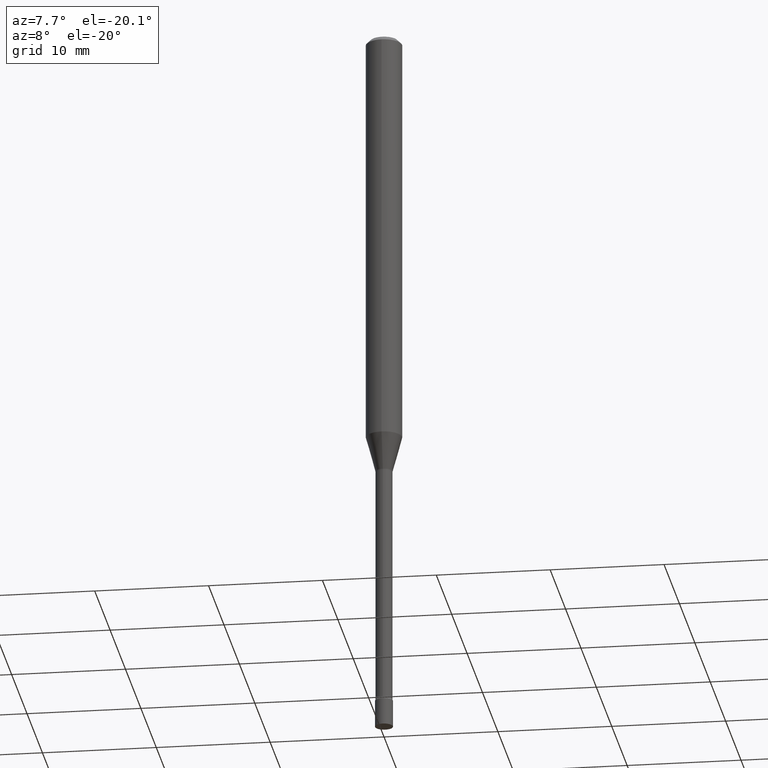
[diagram: clean part render]
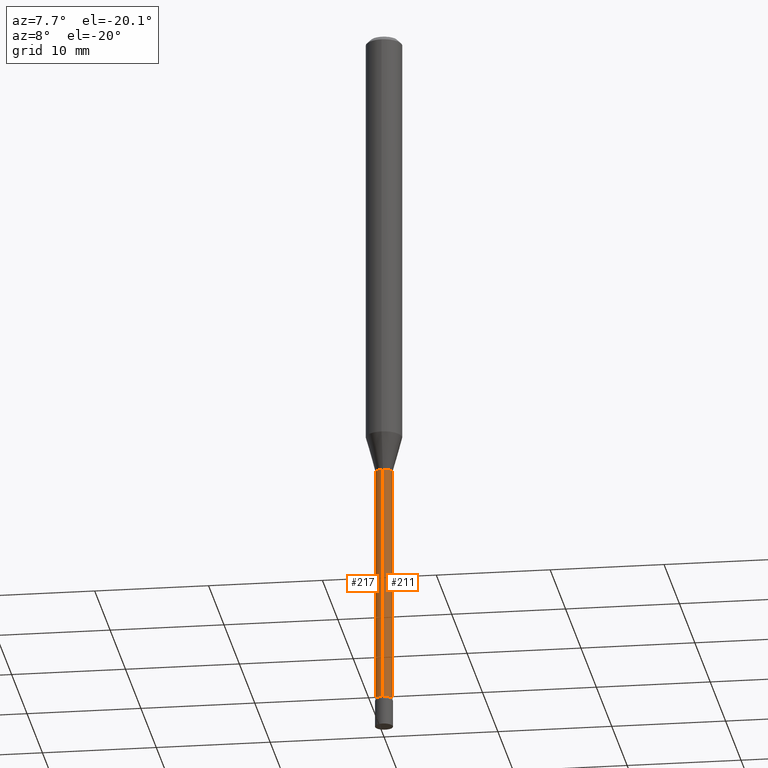
[diagram: same view with one multi-face feature highlighted, each face labeled with its STEP entity id]
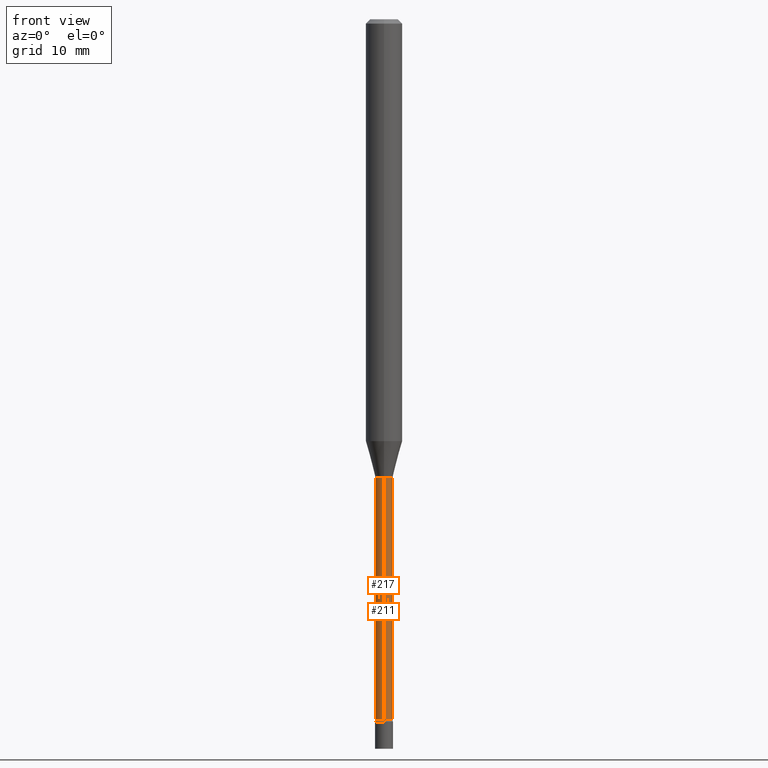
[diagram: same view with one multi-face feature highlighted, each face labeled with its STEP entity id]
A machine part, auxiliary view. The highlighted faces form ONE feature: a constant-radius fillet chain: 2 tangent blend faces with common blend radius 0.7404 mm. The faces share edges in the B-rep.
A second angle (front view) of the same feature is appended — it is thin or edge-on in the first view.
Their STEP definitions:
[1] entity #217 (Cylinder):
#16 = CARTESIAN_POINT ( 'NONE',  ( 2.071232074741282125E-16, 0.02914999999999451016, -1.571974787463811030 ) ) ;
#21 = ORIENTED_EDGE ( 'NONE', *, *, #353, .F. ) ;
#40 = EDGE_LOOP ( 'NONE', ( #21, #296, #447, #461 ) ) ;
#60 = DIRECTION ( 'NONE',  ( -6.982962677686265133E-15, -1.000000000000000000, 0.000000000000000000 ) ) ;
#74 = FACE_OUTER_BOUND ( 'NONE', #40, .T. ) ;
#75 = DIRECTION ( 'NONE',  ( -2.445458496151855897E-29, 3.491496103397614401E-15, 1.000000000000000000 ) ) ;
#76 = DIRECTION ( 'NONE',  ( -2.445458496151855897E-29, 3.491496103397614401E-15, 1.000000000000000000 ) ) ;
#86 = AXIS2_PLACEMENT_3D ( 'NONE', #417, #261, #60 ) ;
#96 = CARTESIAN_POINT ( 'NONE',  ( -2.035533620545550815E-16, -0.02915000000000006128, 1.017771114140406686E-16 ) ) ;
#121 = AXIS2_PLACEMENT_3D ( 'NONE', #317, #75, #454 ) ;
#128 = VECTOR ( 'NONE', #134, 39.37007874015748143 ) ;
#134 = DIRECTION ( 'NONE',  ( -2.445458496151855897E-29, 3.491496103397614007E-15, 1.000000000000000000 ) ) ;
#135 = LINE ( 'NONE', #96, #174 ) ;
#138 = EDGE_CURVE ( 'NONE', #242, #170, #135, .T. ) ;
#148 = CIRCLE ( 'NONE', #86, 0.02915000000000012720 ) ;
#156 = CARTESIAN_POINT ( 'NONE',  ( 3.844199099739884015E-29, -5.488543845069189352E-15, -1.571974787463811030 ) ) ;
#169 = CARTESIAN_POINT ( 'NONE',  ( -2.035533620544968290E-16, -0.02915000000000850591, -2.399783525791635341 ) ) ;
#170 = VERTEX_POINT ( 'NONE', #410 ) ;
#174 = VECTOR ( 'NONE', #330, 39.37007874015748143 ) ;
#212 = AXIS2_PLACEMENT_3D ( 'NONE', #156, #76, #399 ) ;
#216 = CARTESIAN_POINT ( 'NONE',  ( 2.136957277799092535E-16, 0.02914999999999174848, -2.399783525791635341 ) ) ;
#217 = ADVANCED_FACE ( 'NONE', ( #74 ), #360, .T. ) ;
#218 = LINE ( 'NONE', #372, #128 ) ;
#242 = VERTEX_POINT ( 'NONE', #169 ) ;
#261 = DIRECTION ( 'NONE',  ( -2.445458496151855897E-29, 3.491496103397614401E-15, 1.000000000000000000 ) ) ;
#296 = ORIENTED_EDGE ( 'NONE', *, *, #365, .T. ) ;
#317 = CARTESIAN_POINT ( 'NONE',  ( 0.000000000000000000, 0.000000000000000000, 0.000000000000000000 ) ) ;
#320 = VERTEX_POINT ( 'NONE', #216 ) ;
#330 = DIRECTION ( 'NONE',  ( -2.445458496151855897E-29, 3.491496103397614007E-15, 1.000000000000000000 ) ) ;
#353 = EDGE_CURVE ( 'NONE', #320, #477, #218, .T. ) ;
#360 = CYLINDRICAL_SURFACE ( 'NONE', #121, 0.02915000000000006128 ) ;
#365 = EDGE_CURVE ( 'NONE', #320, #242, #148, .T. ) ;
#372 = CARTESIAN_POINT ( 'NONE',  ( 2.071232074740696149E-16, 0.02915000000000006128, -1.017771114140406686E-16 ) ) ;
#376 = CIRCLE ( 'NONE', #212, 0.02914999999999999883 ) ;
#399 = DIRECTION ( 'NONE',  ( -6.982962677686265922E-15, -1.000000000000000000, 0.000000000000000000 ) ) ;
#410 = CARTESIAN_POINT ( 'NONE',  ( -2.035533620545162301E-16, -0.02915000000000548749, -1.571974787463811030 ) ) ;
#417 = CARTESIAN_POINT ( 'NONE',  ( 5.868571012072410138E-29, -8.378834829299282895E-15, -2.399783525791635341 ) ) ;
#447 = ORIENTED_EDGE ( 'NONE', *, *, #138, .T. ) ;
#454 = DIRECTION ( 'NONE',  ( -6.982962677686265922E-15, -1.000000000000000000, 3.491496103397614401E-15 ) ) ;
#461 = ORIENTED_EDGE ( 'NONE', *, *, #496, .F. ) ;
#477 = VERTEX_POINT ( 'NONE', #16 ) ;
#496 = EDGE_CURVE ( 'NONE', #477, #170, #376, .T. ) ;
[2] entity #211 (Cylinder):
#8 = CYLINDRICAL_SURFACE ( 'NONE', #518, 0.02915000000000006128 ) ;
#16 = CARTESIAN_POINT ( 'NONE',  ( 2.071232074741282125E-16, 0.02914999999999451016, -1.571974787463811030 ) ) ;
#34 = ORIENTED_EDGE ( 'NONE', *, *, #391, .T. ) ;
#58 = CIRCLE ( 'NONE', #262, 0.02914999999999999883 ) ;
#95 = AXIS2_PLACEMENT_3D ( 'NONE', #378, #374, #219 ) ;
#96 = CARTESIAN_POINT ( 'NONE',  ( -2.035533620545550815E-16, -0.02915000000000006128, 1.017771114140406686E-16 ) ) ;
#113 = CARTESIAN_POINT ( 'NONE',  ( 0.000000000000000000, 0.000000000000000000, 0.000000000000000000 ) ) ;
#128 = VECTOR ( 'NONE', #134, 39.37007874015748143 ) ;
#134 = DIRECTION ( 'NONE',  ( -2.445458496151855897E-29, 3.491496103397614007E-15, 1.000000000000000000 ) ) ;
#135 = LINE ( 'NONE', #96, #174 ) ;
#138 = EDGE_CURVE ( 'NONE', #242, #170, #135, .T. ) ;
#169 = CARTESIAN_POINT ( 'NONE',  ( -2.035533620544968290E-16, -0.02915000000000850591, -2.399783525791635341 ) ) ;
#170 = VERTEX_POINT ( 'NONE', #410 ) ;
#174 = VECTOR ( 'NONE', #330, 39.37007874015748143 ) ;
#201 = CIRCLE ( 'NONE', #95, 0.02915000000000012720 ) ;
#208 = ORIENTED_EDGE ( 'NONE', *, *, #138, .F. ) ;
#211 = ADVANCED_FACE ( 'NONE', ( #364 ), #8, .T. ) ;
#216 = CARTESIAN_POINT ( 'NONE',  ( 2.136957277799092535E-16, 0.02914999999999174848, -2.399783525791635341 ) ) ;
#218 = LINE ( 'NONE', #372, #128 ) ;
#219 = DIRECTION ( 'NONE',  ( -6.982962677686265133E-15, -1.000000000000000000, 0.000000000000000000 ) ) ;
#222 = CARTESIAN_POINT ( 'NONE',  ( 3.844199099739884015E-29, -5.488543845069189352E-15, -1.571974787463811030 ) ) ;
#242 = VERTEX_POINT ( 'NONE', #169 ) ;
#262 = AXIS2_PLACEMENT_3D ( 'NONE', #222, #500, #499 ) ;
#280 = DIRECTION ( 'NONE',  ( -2.445458496151855897E-29, 3.491496103397614401E-15, 1.000000000000000000 ) ) ;
#320 = VERTEX_POINT ( 'NONE', #216 ) ;
#321 = ORIENTED_EDGE ( 'NONE', *, *, #353, .T. ) ;
#330 = DIRECTION ( 'NONE',  ( -2.445458496151855897E-29, 3.491496103397614007E-15, 1.000000000000000000 ) ) ;
#353 = EDGE_CURVE ( 'NONE', #320, #477, #218, .T. ) ;
#357 = EDGE_LOOP ( 'NONE', ( #34, #321, #472, #208 ) ) ;
#364 = FACE_OUTER_BOUND ( 'NONE', #357, .T. ) ;
#372 = CARTESIAN_POINT ( 'NONE',  ( 2.071232074740696149E-16, 0.02915000000000006128, -1.017771114140406686E-16 ) ) ;
#374 = DIRECTION ( 'NONE',  ( -2.445458496151855897E-29, 3.491496103397614401E-15, 1.000000000000000000 ) ) ;
#378 = CARTESIAN_POINT ( 'NONE',  ( 5.868571012072410138E-29, -8.378834829299282895E-15, -2.399783525791635341 ) ) ;
#379 = EDGE_CURVE ( 'NONE', #170, #477, #58, .T. ) ;
#391 = EDGE_CURVE ( 'NONE', #242, #320, #201, .T. ) ;
#410 = CARTESIAN_POINT ( 'NONE',  ( -2.035533620545162301E-16, -0.02915000000000548749, -1.571974787463811030 ) ) ;
#433 = DIRECTION ( 'NONE',  ( -6.982962677686265922E-15, -1.000000000000000000, 3.491496103397614401E-15 ) ) ;
#472 = ORIENTED_EDGE ( 'NONE', *, *, #379, .F. ) ;
#477 = VERTEX_POINT ( 'NONE', #16 ) ;
#499 = DIRECTION ( 'NONE',  ( -6.982962677686265922E-15, -1.000000000000000000, 0.000000000000000000 ) ) ;
#500 = DIRECTION ( 'NONE',  ( -2.445458496151855897E-29, 3.491496103397614401E-15, 1.000000000000000000 ) ) ;
#518 = AXIS2_PLACEMENT_3D ( 'NONE', #113, #280, #433 ) ;